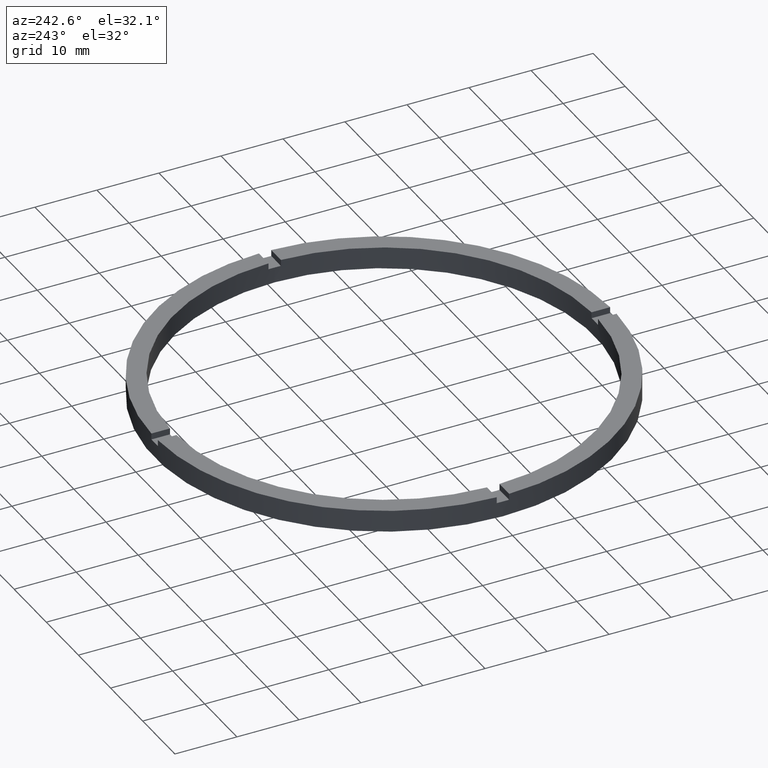
[diagram: clean part render]
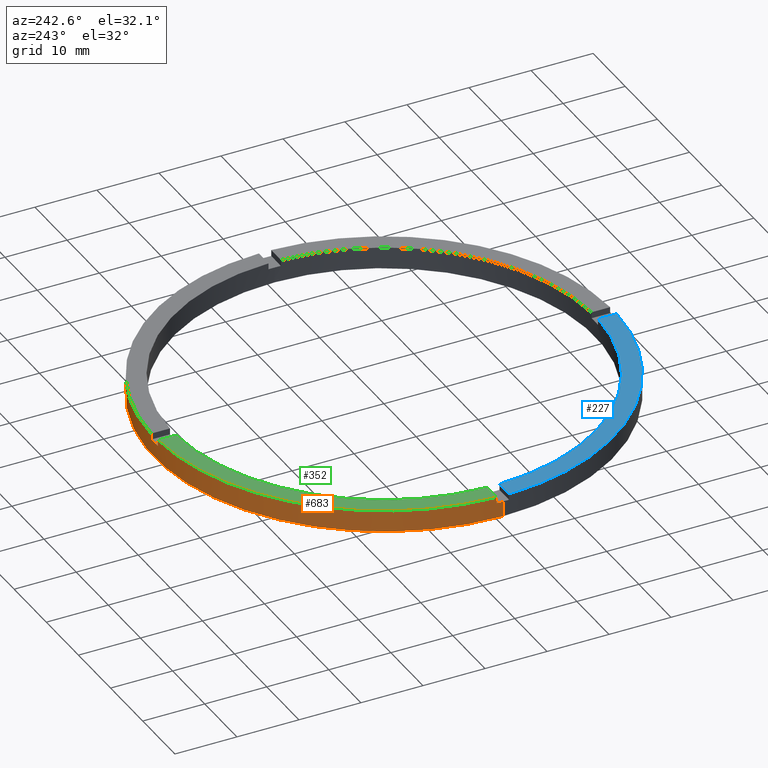
[diagram: same view with three faces highlighted in distinct colors, each labeled with its STEP entity id]
A machine part, auxiliary view with three faces highlighted in distinct colors.
Their STEP definitions:

[orange] entity #683 — the highlighted cylindrical surface (partial cylindrical patch) has radius 37 mm, axis along (-0, -0, -1).
#8 = DIRECTION ( 'NONE',  ( -0.000000000000000000, -0.000000000000000000, -1.000000000000000000 ) ) ;
#15 = VERTEX_POINT ( 'NONE', #210 ) ;
#20 = DIRECTION ( 'NONE',  ( 1.000000000000000000, 0.000000000000000000, 0.000000000000000000 ) ) ;
#22 = VERTEX_POINT ( 'NONE', #469 ) ;
#27 = CARTESIAN_POINT ( 'NONE',  ( -36.98648401781385786, 0.9999999999999726885, 3.500000000000000000 ) ) ;
#32 = AXIS2_PLACEMENT_3D ( 'NONE', #399, #497, #633 ) ;
#37 = LINE ( 'NONE', #518, #317 ) ;
#38 = DIRECTION ( 'NONE',  ( 1.000000000000000000, 0.000000000000000000, 0.000000000000000000 ) ) ;
#59 = VECTOR ( 'NONE', #426, 1000.000000000000000 ) ;
#73 = CARTESIAN_POINT ( 'NONE',  ( 0.000000000000000000, 0.000000000000000000, 2.500000000000000000 ) ) ;
#74 = CYLINDRICAL_SURFACE ( 'NONE', #522, 37.00000000000000000 ) ;
#82 = CIRCLE ( 'NONE', #138, 37.00000000000000000 ) ;
#101 = EDGE_CURVE ( 'NONE', #452, #195, #423, .T. ) ;
#115 = LINE ( 'NONE', #474, #376 ) ;
#116 = AXIS2_PLACEMENT_3D ( 'NONE', #73, #310, #38 ) ;
#126 = VERTEX_POINT ( 'NONE', #489 ) ;
#129 = DIRECTION ( 'NONE',  ( -0.000000000000000000, -0.000000000000000000, -1.000000000000000000 ) ) ;
#137 = CARTESIAN_POINT ( 'NONE',  ( -1.000000000000025091, 36.98648401781385786, 3.500000000000000000 ) ) ;
#138 = AXIS2_PLACEMENT_3D ( 'NONE', #678, #216, #483 ) ;
#155 = VERTEX_POINT ( 'NONE', #284 ) ;
#174 = EDGE_CURVE ( 'NONE', #22, #479, #631, .T. ) ;
#187 = ORIENTED_EDGE ( 'NONE', *, *, #444, .F. ) ;
#188 = VERTEX_POINT ( 'NONE', #385 ) ;
#195 = VERTEX_POINT ( 'NONE', #503 ) ;
#207 = ORIENTED_EDGE ( 'NONE', *, *, #174, .F. ) ;
#210 = CARTESIAN_POINT ( 'NONE',  ( 0.9999999999999749090, 36.98648401781385786, 2.500000000000000000 ) ) ;
#216 = DIRECTION ( 'NONE',  ( 0.000000000000000000, 0.000000000000000000, 1.000000000000000000 ) ) ;
#233 = CARTESIAN_POINT ( 'NONE',  ( -37.00000000000000000, 0.000000000000000000, 2.500000000000000000 ) ) ;
#238 = EDGE_CURVE ( 'NONE', #188, #195, #115, .T. ) ;
#260 = ORIENTED_EDGE ( 'NONE', *, *, #238, .T. ) ;
#271 = ORIENTED_EDGE ( 'NONE', *, *, #517, .F. ) ;
#284 = CARTESIAN_POINT ( 'NONE',  ( 37.00000000000000000, 4.531193156845206793E-15, 0.000000000000000000 ) ) ;
#300 = LINE ( 'NONE', #137, #548 ) ;
#310 = DIRECTION ( 'NONE',  ( 0.000000000000000000, 0.000000000000000000, 1.000000000000000000 ) ) ;
#315 = LINE ( 'NONE', #364, #59 ) ;
#317 = VECTOR ( 'NONE', #375, 1000.000000000000000 ) ;
#324 = CIRCLE ( 'NONE', #360, 37.00000000000000000 ) ;
#359 = DIRECTION ( 'NONE',  ( 1.000000000000000000, 0.000000000000000000, 0.000000000000000000 ) ) ;
#360 = AXIS2_PLACEMENT_3D ( 'NONE', #739, #587, #392 ) ;
#364 = CARTESIAN_POINT ( 'NONE',  ( -37.00000000000000000, 0.000000000000000000, 3.500000000000000000 ) ) ;
#368 = CARTESIAN_POINT ( 'NONE',  ( 37.00000000000000000, 4.531193156845206793E-15, 2.500000000000000000 ) ) ;
#375 = DIRECTION ( 'NONE',  ( 0.000000000000000000, 0.000000000000000000, 1.000000000000000000 ) ) ;
#376 = VECTOR ( 'NONE', #8, 1000.000000000000000 ) ;
#379 = DIRECTION ( 'NONE',  ( -0.000000000000000000, -0.000000000000000000, -1.000000000000000000 ) ) ;
#380 = CARTESIAN_POINT ( 'NONE',  ( 0.000000000000000000, 0.000000000000000000, 2.500000000000000000 ) ) ;
#385 = CARTESIAN_POINT ( 'NONE',  ( 36.98648401781386497, 0.9999999999998423483, 3.500000000000000000 ) ) ;
#389 = ORIENTED_EDGE ( 'NONE', *, *, #677, .F. ) ;
#392 = DIRECTION ( 'NONE',  ( 1.000000000000000000, 0.000000000000000000, 0.000000000000000000 ) ) ;
#393 = EDGE_CURVE ( 'NONE', #693, #526, #300, .T. ) ;
#394 = ORIENTED_EDGE ( 'NONE', *, *, #551, .F. ) ;
#398 = AXIS2_PLACEMENT_3D ( 'NONE', #380, #436, #20 ) ;
#399 = CARTESIAN_POINT ( 'NONE',  ( 0.000000000000000000, 0.000000000000000000, 3.500000000000000000 ) ) ;
#407 = ORIENTED_EDGE ( 'NONE', *, *, #563, .T. ) ;
#411 = CARTESIAN_POINT ( 'NONE',  ( 0.000000000000000000, 0.000000000000000000, 3.500000000000000000 ) ) ;
#421 = EDGE_CURVE ( 'NONE', #15, #520, #37, .T. ) ;
#423 = CIRCLE ( 'NONE', #116, 37.00000000000000000 ) ;
#426 = DIRECTION ( 'NONE',  ( -0.000000000000000000, -0.000000000000000000, -1.000000000000000000 ) ) ;
#436 = DIRECTION ( 'NONE',  ( 0.000000000000000000, 0.000000000000000000, 1.000000000000000000 ) ) ;
#444 = EDGE_CURVE ( 'NONE', #693, #126, #576, .T. ) ;
#452 = VERTEX_POINT ( 'NONE', #368 ) ;
#466 = VERTEX_POINT ( 'NONE', #638 ) ;
#469 = CARTESIAN_POINT ( 'NONE',  ( -36.98648401781385786, 0.9999999999999726885, 2.500000000000000000 ) ) ;
#470 = CARTESIAN_POINT ( 'NONE',  ( 37.00000000000000000, 4.531193156845206793E-15, 3.500000000000000000 ) ) ;
#473 = DIRECTION ( 'NONE',  ( 0.000000000000000000, -0.000000000000000000, 1.000000000000000000 ) ) ;
#474 = CARTESIAN_POINT ( 'NONE',  ( 36.98648401781386497, 0.9999999999998423483, 3.500000000000000000 ) ) ;
#479 = VERTEX_POINT ( 'NONE', #233 ) ;
#483 = DIRECTION ( 'NONE',  ( 1.000000000000000000, 0.000000000000000000, 0.000000000000000000 ) ) ;
#489 = CARTESIAN_POINT ( 'NONE',  ( -36.98648401781385786, 0.9999999999999726885, 3.500000000000000000 ) ) ;
#497 = DIRECTION ( 'NONE',  ( 0.000000000000000000, 0.000000000000000000, 1.000000000000000000 ) ) ;
#500 = EDGE_CURVE ( 'NONE', #452, #155, #569, .T. ) ;
#503 = CARTESIAN_POINT ( 'NONE',  ( 36.98648401781386497, 0.9999999999998423483, 2.500000000000000000 ) ) ;
#511 = ORIENTED_EDGE ( 'NONE', *, *, #393, .T. ) ;
#517 = EDGE_CURVE ( 'NONE', #479, #466, #315, .T. ) ;
#518 = CARTESIAN_POINT ( 'NONE',  ( 0.9999999999999749090, 36.98648401781385786, 3.500000000000000000 ) ) ;
#520 = VERTEX_POINT ( 'NONE', #535 ) ;
#522 = AXIS2_PLACEMENT_3D ( 'NONE', #411, #692, #528 ) ;
#526 = VERTEX_POINT ( 'NONE', #771 ) ;
#528 = DIRECTION ( 'NONE',  ( -1.000000000000000000, 0.000000000000000000, 0.000000000000000000 ) ) ;
#535 = CARTESIAN_POINT ( 'NONE',  ( 0.9999999999999749090, 36.98648401781385786, 3.500000000000000000 ) ) ;
#548 = VECTOR ( 'NONE', #379, 1000.000000000000000 ) ;
#551 = EDGE_CURVE ( 'NONE', #188, #520, #82, .T. ) ;
#562 = VECTOR ( 'NONE', #129, 1000.000000000000000 ) ;
#563 = EDGE_CURVE ( 'NONE', #155, #466, #324, .T. ) ;
#564 = CARTESIAN_POINT ( 'NONE',  ( 0.000000000000000000, 0.000000000000000000, 2.500000000000000000 ) ) ;
#569 = LINE ( 'NONE', #470, #562 ) ;
#576 = CIRCLE ( 'NONE', #32, 37.00000000000000000 ) ;
#583 = FACE_OUTER_BOUND ( 'NONE', #740, .T. ) ;
#587 = DIRECTION ( 'NONE',  ( 0.000000000000000000, 0.000000000000000000, 1.000000000000000000 ) ) ;
#593 = CIRCLE ( 'NONE', #737, 37.00000000000000000 ) ;
#608 = LINE ( 'NONE', #27, #613 ) ;
#613 = VECTOR ( 'NONE', #703, 1000.000000000000000 ) ;
#631 = CIRCLE ( 'NONE', #398, 37.00000000000000000 ) ;
#633 = DIRECTION ( 'NONE',  ( 1.000000000000000000, 0.000000000000000000, 0.000000000000000000 ) ) ;
#635 = CARTESIAN_POINT ( 'NONE',  ( -1.000000000000025091, 36.98648401781385786, 3.500000000000000000 ) ) ;
#638 = CARTESIAN_POINT ( 'NONE',  ( -37.00000000000000000, 0.000000000000000000, 0.000000000000000000 ) ) ;
#639 = ORIENTED_EDGE ( 'NONE', *, *, #696, .T. ) ;
#648 = ORIENTED_EDGE ( 'NONE', *, *, #101, .F. ) ;
#677 = EDGE_CURVE ( 'NONE', #15, #526, #593, .T. ) ;
#678 = CARTESIAN_POINT ( 'NONE',  ( 0.000000000000000000, 0.000000000000000000, 3.500000000000000000 ) ) ;
#683 = ADVANCED_FACE ( 'NONE', ( #583 ), #74, .T. ) ;
#692 = DIRECTION ( 'NONE',  ( -0.000000000000000000, -0.000000000000000000, -1.000000000000000000 ) ) ;
#693 = VERTEX_POINT ( 'NONE', #635 ) ;
#696 = EDGE_CURVE ( 'NONE', #22, #126, #608, .T. ) ;
#703 = DIRECTION ( 'NONE',  ( 0.000000000000000000, 0.000000000000000000, 1.000000000000000000 ) ) ;
#737 = AXIS2_PLACEMENT_3D ( 'NONE', #564, #473, #359 ) ;
#739 = CARTESIAN_POINT ( 'NONE',  ( 0.000000000000000000, 0.000000000000000000, 0.000000000000000000 ) ) ;
#740 = EDGE_LOOP ( 'NONE', ( #648, #769, #407, #271, #207, #639, #187, #511, #389, #783, #394, #260 ) ) ;
#769 = ORIENTED_EDGE ( 'NONE', *, *, #500, .T. ) ;
#771 = CARTESIAN_POINT ( 'NONE',  ( -1.000000000000025091, 36.98648401781385786, 2.500000000000000000 ) ) ;
#783 = ORIENTED_EDGE ( 'NONE', *, *, #421, .T. ) ;

[blue] entity #227 — the highlighted planar face has unit normal (0, 0, 1).
#1 = ORIENTED_EDGE ( 'NONE', *, *, #432, .F. ) ;
#29 = DIRECTION ( 'NONE',  ( 1.301042606982605074E-16, -1.000000000000000000, 0.000000000000000000 ) ) ;
#54 = VECTOR ( 'NONE', #181, 1000.000000000000000 ) ;
#67 = LINE ( 'NONE', #211, #597 ) ;
#145 = ORIENTED_EDGE ( 'NONE', *, *, #558, .F. ) ;
#181 = DIRECTION ( 'NONE',  ( 1.000000000000000000, 1.951563910473907735E-16, -0.000000000000000000 ) ) ;
#206 = PLANE ( 'NONE',  #510 ) ;
#208 = VERTEX_POINT ( 'NONE', #546 ) ;
#211 = CARTESIAN_POINT ( 'NONE',  ( -1.000000000000161426, -27.00000000000017764, 3.500000000000000000 ) ) ;
#227 = ADVANCED_FACE ( 'NONE', ( #623 ), #206, .T. ) ;
#240 = CARTESIAN_POINT ( 'NONE',  ( -1.000000000000160094, -36.98648401781385076, 3.500000000000000000 ) ) ;
#262 = DIRECTION ( 'NONE',  ( 0.000000000000000000, 0.000000000000000000, 1.000000000000000000 ) ) ;
#278 = CARTESIAN_POINT ( 'NONE',  ( -1.000000000000160538, -33.98529093593285211, 3.500000000000000000 ) ) ;
#293 = CARTESIAN_POINT ( 'NONE',  ( 0.000000000000000000, 0.000000000000000000, 3.500000000000000000 ) ) ;
#306 = LINE ( 'NONE', #560, #54 ) ;
#308 = AXIS2_PLACEMENT_3D ( 'NONE', #782, #539, #656 ) ;
#319 = CIRCLE ( 'NONE', #308, 34.00000000000000000 ) ;
#338 = CIRCLE ( 'NONE', #660, 37.00000000000000000 ) ;
#362 = DIRECTION ( 'NONE',  ( 0.000000000000000000, 0.000000000000000000, 1.000000000000000000 ) ) ;
#422 = CARTESIAN_POINT ( 'NONE',  ( -36.98648401781385786, -1.000000000000027311, 3.500000000000000000 ) ) ;
#432 = EDGE_CURVE ( 'NONE', #772, #208, #306, .T. ) ;
#453 = EDGE_CURVE ( 'NONE', #208, #454, #319, .T. ) ;
#454 = VERTEX_POINT ( 'NONE', #278 ) ;
#461 = ORIENTED_EDGE ( 'NONE', *, *, #663, .T. ) ;
#495 = EDGE_LOOP ( 'NONE', ( #145, #704, #1, #461 ) ) ;
#510 = AXIS2_PLACEMENT_3D ( 'NONE', #671, #262, #733 ) ;
#539 = DIRECTION ( 'NONE',  ( 0.000000000000000000, 0.000000000000000000, 1.000000000000000000 ) ) ;
#546 = CARTESIAN_POINT ( 'NONE',  ( -33.98529093593285211, -1.000000000000026867, 3.500000000000000000 ) ) ;
#558 = EDGE_CURVE ( 'NONE', #454, #724, #67, .T. ) ;
#560 = CARTESIAN_POINT ( 'NONE',  ( -27.00000000000018474, -1.000000000000025313, 3.500000000000000000 ) ) ;
#595 = DIRECTION ( 'NONE',  ( 1.000000000000000000, 0.000000000000000000, 0.000000000000000000 ) ) ;
#597 = VECTOR ( 'NONE', #29, 1000.000000000000000 ) ;
#623 = FACE_OUTER_BOUND ( 'NONE', #495, .T. ) ;
#656 = DIRECTION ( 'NONE',  ( 1.000000000000000000, 0.000000000000000000, 0.000000000000000000 ) ) ;
#660 = AXIS2_PLACEMENT_3D ( 'NONE', #293, #362, #595 ) ;
#663 = EDGE_CURVE ( 'NONE', #772, #724, #338, .T. ) ;
#671 = CARTESIAN_POINT ( 'NONE',  ( 0.000000000000000000, 0.000000000000000000, 3.500000000000000000 ) ) ;
#704 = ORIENTED_EDGE ( 'NONE', *, *, #453, .F. ) ;
#724 = VERTEX_POINT ( 'NONE', #240 ) ;
#733 = DIRECTION ( 'NONE',  ( 1.000000000000000000, 0.000000000000000000, -0.000000000000000000 ) ) ;
#772 = VERTEX_POINT ( 'NONE', #422 ) ;
#782 = CARTESIAN_POINT ( 'NONE',  ( 0.000000000000000000, 0.000000000000000000, 3.500000000000000000 ) ) ;

[green] entity #352 — the highlighted planar face has unit normal (0, 0, 1).
#18 = DIRECTION ( 'NONE',  ( 1.000000000000000000, 0.000000000000000000, -0.000000000000000000 ) ) ;
#19 = EDGE_LOOP ( 'NONE', ( #641, #265, #134, #690 ) ) ;
#23 = EDGE_CURVE ( 'NONE', #697, #442, #661, .T. ) ;
#32 = AXIS2_PLACEMENT_3D ( 'NONE', #399, #497, #633 ) ;
#66 = DIRECTION ( 'NONE',  ( 1.000000000000000000, 0.000000000000000000, 0.000000000000000000 ) ) ;
#111 = VECTOR ( 'NONE', #289, 1000.000000000000000 ) ;
#126 = VERTEX_POINT ( 'NONE', #489 ) ;
#134 = ORIENTED_EDGE ( 'NONE', *, *, #261, .F. ) ;
#245 = CARTESIAN_POINT ( 'NONE',  ( -1.000000000000025091, 26.99999999999999645, 3.500000000000000000 ) ) ;
#255 = EDGE_CURVE ( 'NONE', #693, #697, #621, .T. ) ;
#261 = EDGE_CURVE ( 'NONE', #442, #126, #378, .T. ) ;
#265 = ORIENTED_EDGE ( 'NONE', *, *, #444, .T. ) ;
#289 = DIRECTION ( 'NONE',  ( -0.000000000000000000, -1.000000000000000000, -0.000000000000000000 ) ) ;
#311 = FACE_OUTER_BOUND ( 'NONE', #19, .T. ) ;
#352 = ADVANCED_FACE ( 'NONE', ( #311 ), #492, .T. ) ;
#378 = LINE ( 'NONE', #541, #383 ) ;
#383 = VECTOR ( 'NONE', #652, 1000.000000000000000 ) ;
#399 = CARTESIAN_POINT ( 'NONE',  ( 0.000000000000000000, 0.000000000000000000, 3.500000000000000000 ) ) ;
#430 = CARTESIAN_POINT ( 'NONE',  ( -33.98529093593285921, 0.9999999999999731326, 3.500000000000000000 ) ) ;
#442 = VERTEX_POINT ( 'NONE', #430 ) ;
#444 = EDGE_CURVE ( 'NONE', #693, #126, #576, .T. ) ;
#489 = CARTESIAN_POINT ( 'NONE',  ( -36.98648401781385786, 0.9999999999999726885, 3.500000000000000000 ) ) ;
#492 = PLANE ( 'NONE',  #590 ) ;
#497 = DIRECTION ( 'NONE',  ( 0.000000000000000000, 0.000000000000000000, 1.000000000000000000 ) ) ;
#521 = DIRECTION ( 'NONE',  ( 0.000000000000000000, 0.000000000000000000, 1.000000000000000000 ) ) ;
#540 = CARTESIAN_POINT ( 'NONE',  ( 0.000000000000000000, 0.000000000000000000, 3.500000000000000000 ) ) ;
#541 = CARTESIAN_POINT ( 'NONE',  ( -27.00000000000018474, 0.9999999999999746869, 3.500000000000000000 ) ) ;
#542 = DIRECTION ( 'NONE',  ( 0.000000000000000000, 0.000000000000000000, 1.000000000000000000 ) ) ;
#576 = CIRCLE ( 'NONE', #32, 37.00000000000000000 ) ;
#590 = AXIS2_PLACEMENT_3D ( 'NONE', #540, #542, #18 ) ;
#621 = LINE ( 'NONE', #245, #111 ) ;
#633 = DIRECTION ( 'NONE',  ( 1.000000000000000000, 0.000000000000000000, 0.000000000000000000 ) ) ;
#635 = CARTESIAN_POINT ( 'NONE',  ( -1.000000000000025091, 36.98648401781385786, 3.500000000000000000 ) ) ;
#641 = ORIENTED_EDGE ( 'NONE', *, *, #255, .F. ) ;
#646 = AXIS2_PLACEMENT_3D ( 'NONE', #654, #521, #66 ) ;
#652 = DIRECTION ( 'NONE',  ( -1.000000000000000000, -1.951563910473907735E-16, 0.000000000000000000 ) ) ;
#654 = CARTESIAN_POINT ( 'NONE',  ( 0.000000000000000000, 0.000000000000000000, 3.500000000000000000 ) ) ;
#661 = CIRCLE ( 'NONE', #646, 34.00000000000000000 ) ;
#686 = CARTESIAN_POINT ( 'NONE',  ( -1.000000000000025091, 33.98529093593285211, 3.500000000000000000 ) ) ;
#690 = ORIENTED_EDGE ( 'NONE', *, *, #23, .F. ) ;
#693 = VERTEX_POINT ( 'NONE', #635 ) ;
#697 = VERTEX_POINT ( 'NONE', #686 ) ;